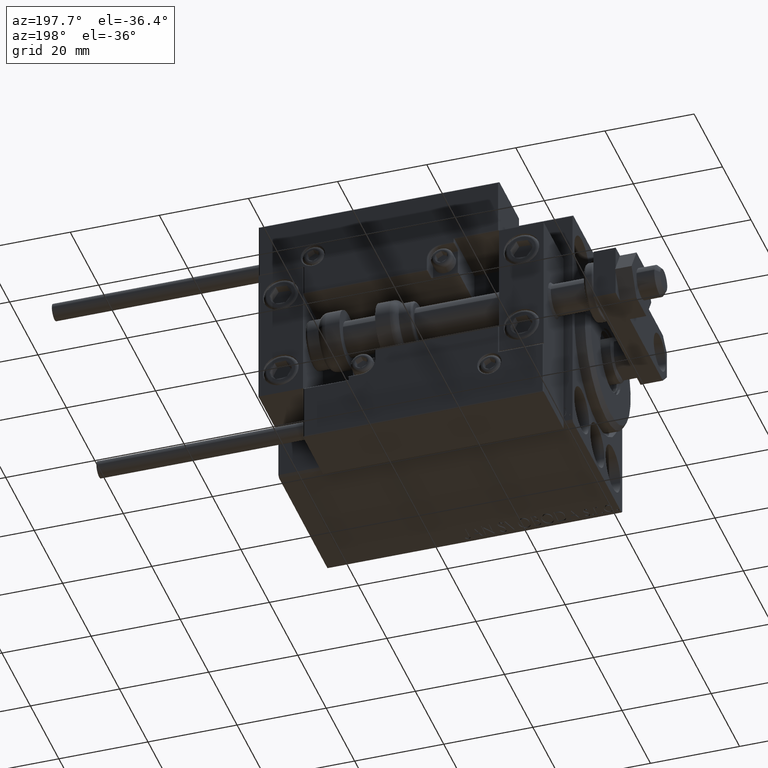
[diagram: clean part render]
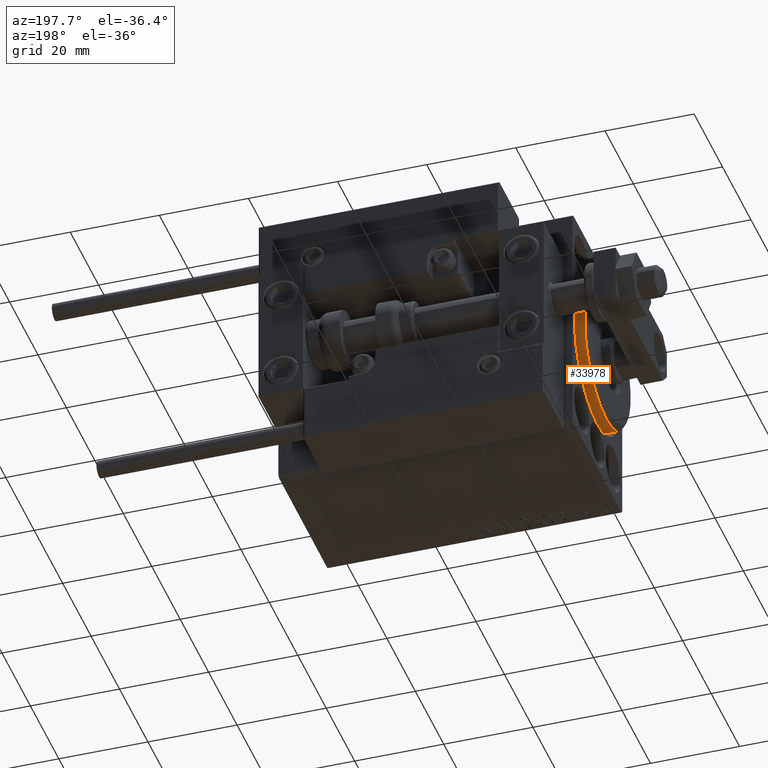
[diagram: same view with one face highlighted and labeled with its STEP entity id]
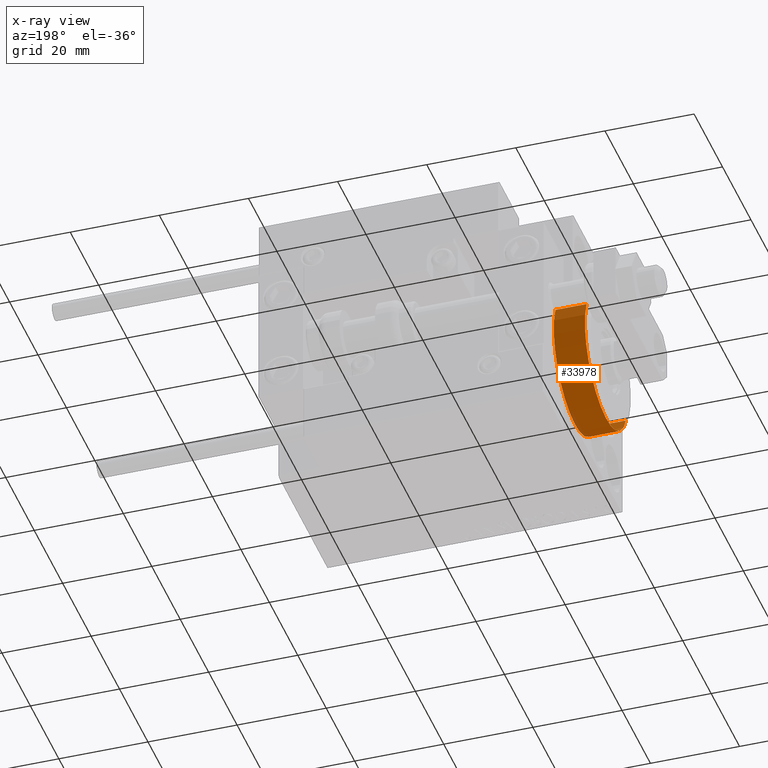
[diagram: x-ray of the same camera — body ghosted, the highlighted face saturated]
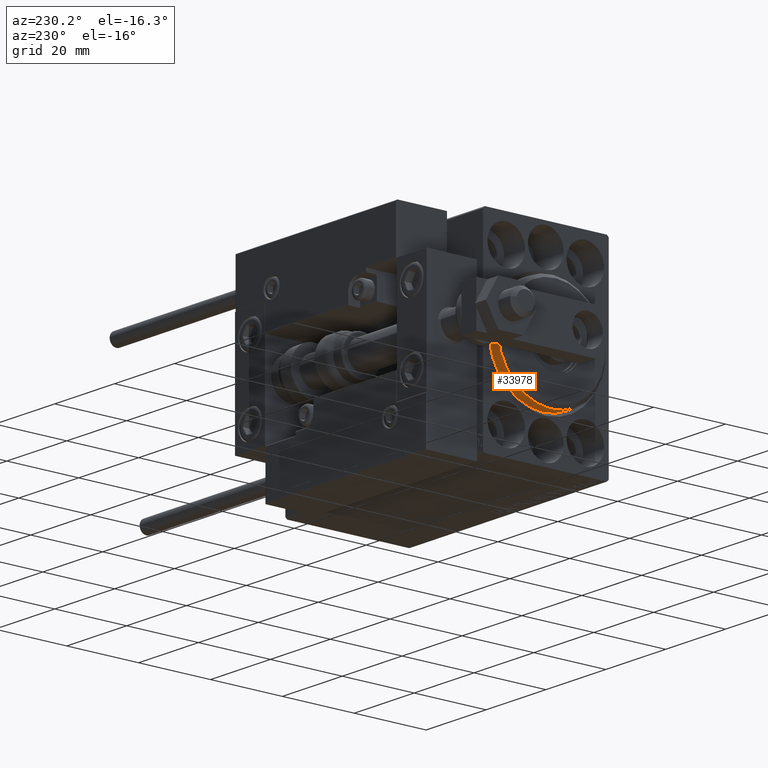
[diagram: same view with one face highlighted and labeled with its STEP entity id]
A machine part, auxiliary view. The second image highlights one B-rep face of the part: STEP entity #33978.
The next image is the same camera in x-ray: the body ghosted, the highlighted face saturated — about 2% of this face is hidden behind the body in this view.
A second angle (auxiliary view) of the same face is appended — the face is thin or edge-on in the first view.
In plain terms, the highlighted cylindrical surface (partial cylindrical patch) has radius 15 mm, axis along (1, 0, 0).
Its self-contained STEP definition (entity closure, byte-faithful):
#1505 = CYLINDRICAL_SURFACE ( 'NONE', #10746, 15.00000000000000000 ) ;
#2070 = EDGE_CURVE ( 'NONE', #26860, #39117, #14990, .T. ) ;
#2253 = VECTOR ( 'NONE', #42239, 1000.000000000000000 ) ;
#3616 = AXIS2_PLACEMENT_3D ( 'NONE', #5602, #32726, #20323 ) ;
#4183 = CARTESIAN_POINT ( 'NONE',  ( -5.000000000000000000, 0.000000000000000000, 15.00000000000000000 ) ) ;
#4920 = AXIS2_PLACEMENT_3D ( 'NONE', #37036, #40329, #25085 ) ;
#5602 = CARTESIAN_POINT ( 'NONE',  ( 1.999999999999995781, 0.000000000000000000, 0.000000000000000000 ) ) ;
#6982 = CARTESIAN_POINT ( 'NONE',  ( 3.000000000000000000, 0.000000000000000000, 15.00000000000000000 ) ) ;
#7548 = ORIENTED_EDGE ( 'NONE', *, *, #43394, .T. ) ;
#8357 = FACE_OUTER_BOUND ( 'NONE', #43024, .T. ) ;
#8706 = EDGE_CURVE ( 'NONE', #26860, #30792, #15594, .T. ) ;
#8785 = ORIENTED_EDGE ( 'NONE', *, *, #28890, .F. ) ;
#10580 = CIRCLE ( 'NONE', #4920, 15.00000000000000000 ) ;
#10746 = AXIS2_PLACEMENT_3D ( 'NONE', #28863, #13416, #12924 ) ;
#10902 = ORIENTED_EDGE ( 'NONE', *, *, #8706, .F. ) ;
#12924 = DIRECTION ( 'NONE',  ( 0.000000000000000000, 0.000000000000000000, 1.000000000000000000 ) ) ;
#13416 = DIRECTION ( 'NONE',  ( -1.000000000000000000, -0.000000000000000000, -0.000000000000000000 ) ) ;
#14990 = CIRCLE ( 'NONE', #3616, 15.00000000000000000 ) ;
#15594 = LINE ( 'NONE', #6982, #2253 ) ;
#18051 = VECTOR ( 'NONE', #21999, 1000.000000000000000 ) ;
#20323 = DIRECTION ( 'NONE',  ( 0.000000000000000000, 0.000000000000000000, -1.000000000000000000 ) ) ;
#21999 = DIRECTION ( 'NONE',  ( -1.000000000000000000, -0.000000000000000000, -0.000000000000000000 ) ) ;
#25085 = DIRECTION ( 'NONE',  ( 0.000000000000000000, 0.000000000000000000, 1.000000000000000000 ) ) ;
#26860 = VERTEX_POINT ( 'NONE', #49926 ) ;
#27019 = VERTEX_POINT ( 'NONE', #44811 ) ;
#28106 = CARTESIAN_POINT ( 'NONE',  ( 1.999999999999995781, 1.836970198721029589E-15, -15.00000000000000000 ) ) ;
#28863 = CARTESIAN_POINT ( 'NONE',  ( 3.000000000000000000, 0.000000000000000000, 0.000000000000000000 ) ) ;
#28890 = EDGE_CURVE ( 'NONE', #30792, #27019, #10580, .T. ) ;
#30792 = VERTEX_POINT ( 'NONE', #4183 ) ;
#32726 = DIRECTION ( 'NONE',  ( -1.000000000000000000, 0.000000000000000000, 0.000000000000000000 ) ) ;
#33978 = ADVANCED_FACE ( 'NONE', ( #8357 ), #1505, .T. ) ;
#37036 = CARTESIAN_POINT ( 'NONE',  ( -5.000000000000000000, 0.000000000000000000, 0.000000000000000000 ) ) ;
#39117 = VERTEX_POINT ( 'NONE', #28106 ) ;
#40329 = DIRECTION ( 'NONE',  ( -1.000000000000000000, 0.000000000000000000, 0.000000000000000000 ) ) ;
#42239 = DIRECTION ( 'NONE',  ( -1.000000000000000000, -0.000000000000000000, -0.000000000000000000 ) ) ;
#43024 = EDGE_LOOP ( 'NONE', ( #47996, #7548, #8785, #10902 ) ) ;
#43394 = EDGE_CURVE ( 'NONE', #39117, #27019, #46078, .T. ) ;
#44811 = CARTESIAN_POINT ( 'NONE',  ( -5.000000000000000000, 1.836970198721029589E-15, -15.00000000000000000 ) ) ;
#46078 = LINE ( 'NONE', #50135, #18051 ) ;
#47996 = ORIENTED_EDGE ( 'NONE', *, *, #2070, .T. ) ;
#49926 = CARTESIAN_POINT ( 'NONE',  ( 1.999999999999995781, 0.000000000000000000, 15.00000000000000000 ) ) ;
#50135 = CARTESIAN_POINT ( 'NONE',  ( 3.000000000000000000, 1.836970198721029589E-15, -15.00000000000000000 ) ) ;